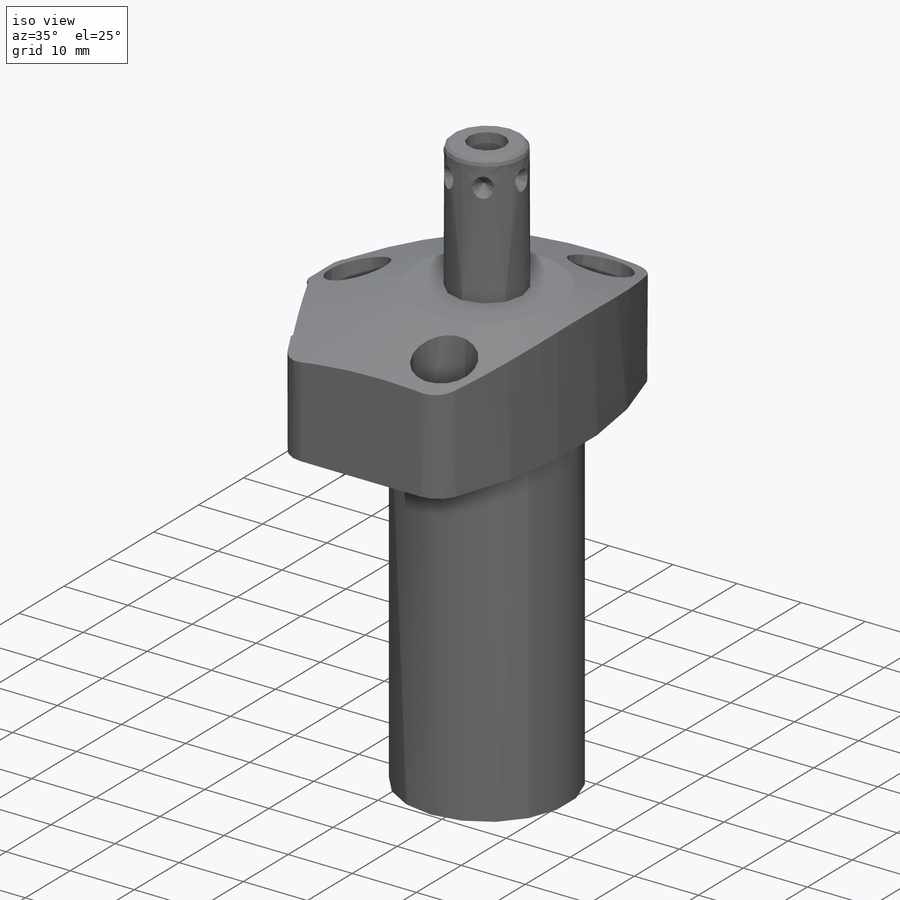
[diagram: iso view]
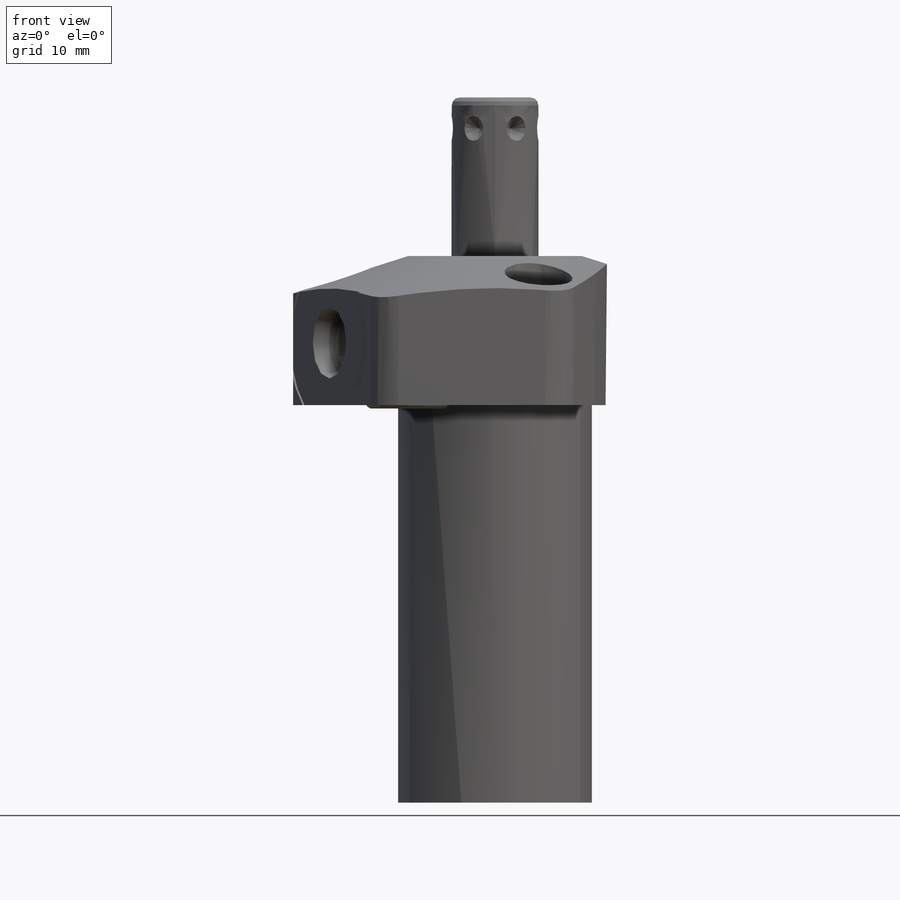
[diagram: front view]
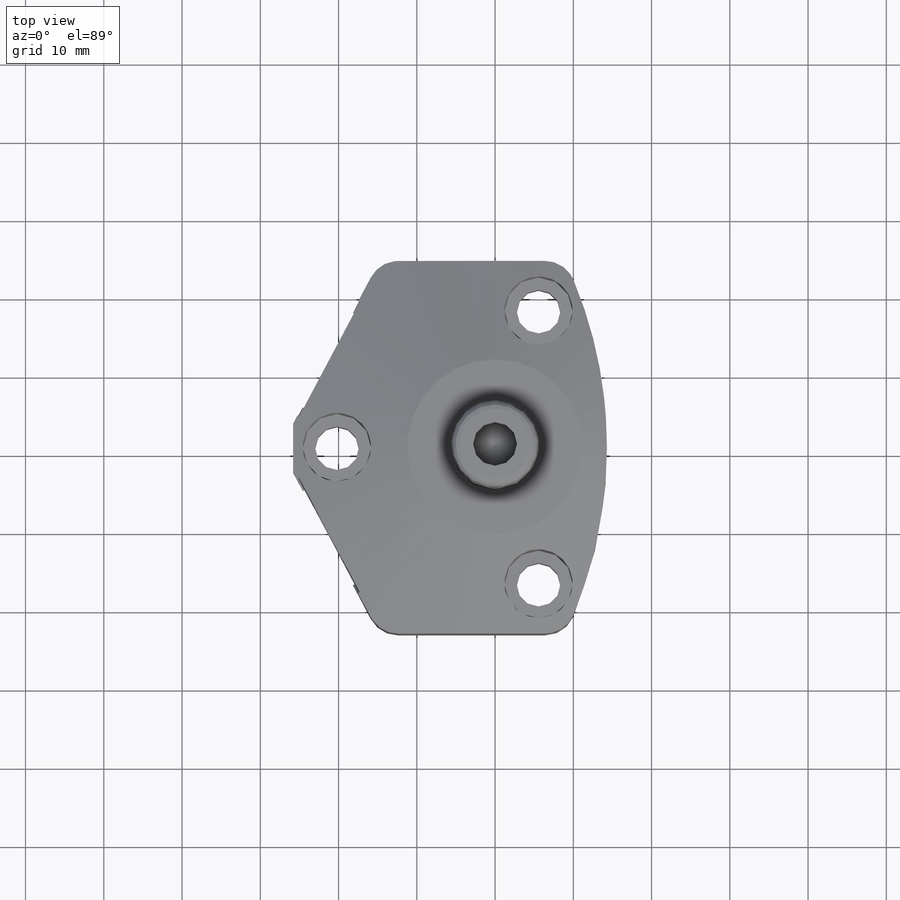
[diagram: top view]
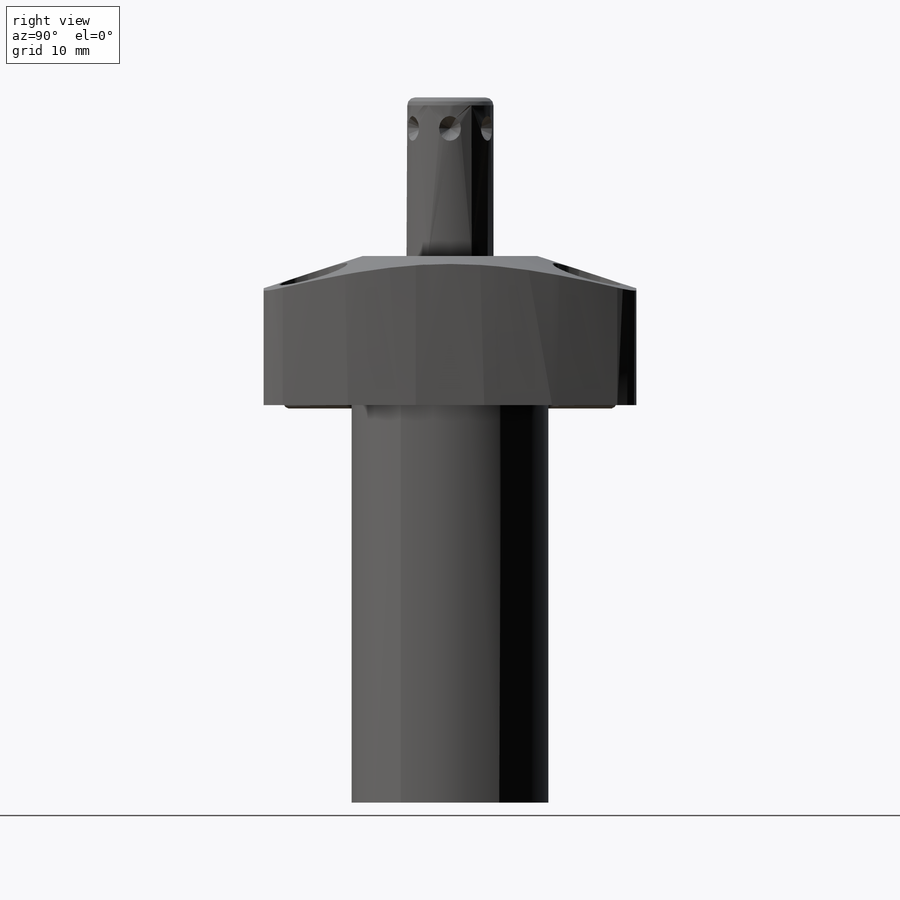
[diagram: right view]
SOLIDWORKS PART (.sldprt)
format: sldprt  version: not decoded by parser v0  size: 455,168 bytes
history: native  units: mm
features: sketch x18, plane x14, cut_revolve x7, cut_extrude x6, revolve x3, material x1, fillet x1, pattern_circular x1, hole x1, mirror x1 (+13 scaffold rows collapsed)
feature tree (66):
  scaffold x13  (default folders/planes/origin — collapsed)
  material  "Alloy Steel"
  plane  "Plane1"
  sketch  "Sketch1"  dims[D1=69.85mm D2=19.05mm D3=25.146mm D4=57.15mm]
  revolve  "Revolve1"  Angle=360deg
  plane  "Plane2"
  sketch  "Sketch2"  dims[D1=47.625mm D2=0.0mm]
  cut_extrude  "Cut-Extrude1"  [1 undecoded]
  plane  "Plane3"
  sketch  "Sketch3"  dims[c1.D1=~35.17504mm c2.D1=28.0deg c2.D2=24.2062mm]
  cut_extrude  "Cut-Extrude2"  Depth=0mm
  plane  "Plane4"
  sketch  "S2D0002"  dims[D1=55.5752mm D2=15.4686mm D3=41.275mm D4=~106.758143mm]
  cut_extrude  "Cut-Extrude3"  Depth=26.035mm
  fillet  "Fillet1"  Radius=3.9624mm
  plane  "Plane5"
  sketch  "Sketch5"  dims[c1.D1=22.352mm c1.D2=~38.255815mm c2.D2=18.0deg c2.D3=44.45mm]
  cut_revolve  "Cut-Revolve1"  Angle=360deg
  plane  "Plane6"
  sketch  "Sketch6"  dims[D1=12.192mm]
  cut_revolve  "Cut-Revolve2"  Angle=360deg
  plane  "Plane7"
  sketch  "Sketch7"  dims[D1=12.192mm]
  cut_revolve  "Cut-Revolve3"  Angle=360deg
  plane  "Plane8"
  sketch  "Sketch17"  dims[D1=20.955mm]
  cut_extrude  "Cut-Extrude4"  Depth=0.254mm
  sketch  "Sketch18"  dims[D1=20.955mm]
  cut_extrude  "Cut-Extrude5"  Depth=0.254mm
  sketch  "Sketch8"  dims[D1=11.684mm]
  cut_revolve  "Cut-Revolve4"  Angle=360deg
  plane  "Plane9"
  sketch  "Sketch9"  dims[D1=11.684mm]
  cut_revolve  "Cut-Revolve5"  Angle=360deg
  plane  "Plane10"
  sketch  "Sketch10"  dims[D3=1.016mm D1=11.1125mm D2=39.3192mm]
  revolve  "Revolve2"  Angle=360deg
  sketch  "Sketch19"  dims[D1=11.1252mm]
  cut_extrude  "Cut-Extrude6"  Depth=2.667mm
  plane  "Plane11"
  sketch  "S2D0001"  dims[c1.D1=5.6134mm c1.D2=10.16mm c1.D3=2.8067mm c2.D3=59.0deg]
  cut_revolve  "Cut-Revolve6"  Angle=360deg
  plane  "Plane14"
  sketch  "Sketch14"  dims[D5=0.508mm D9=0.889mm D1=2.54mm D2=7.9502mm D3=3.175mm D4=0.127mm D6=5.334mm D7=0.3048mm D8=0.3048mm D10=9.144mm D11=10.922mm D12=6.5024mm]
  revolve  "Revolve3"  Angle=360deg
  plane  "Plane15"
  sketch  "Sketch15"  dims[c1.D1=3.9624mm c1.D2=3.175mm c1.D3=1.5875mm c2.D3=45.0deg]
  plane  "Plane16"
  cut_revolve  "Cut-Revolve7"  Angle=360deg
  pattern_circular  "CirPattern1"  Count=6 Angle=360deg
  hole  "Hole1"  Diameter=5.5626mm Depth=19.05mm
  sketch  "Sketch21"  dims[D1=5.5626mm D2=17.4498mm D3=20.193mm]
  sketch  "Sketch20"  dims[Diameter=5.5626mm Depth=19.05mm C-Bore Diameter=8.7122mm C-Bore Depth=11.0998mm]
  mirror  "Mirror1"
decode coverage: 36 of 38 modeling features carry decoded parameters
note: ~ marks probable driven/reference dimensions
note: 1 parameter value undecoded
note: suppression state not decoded; provenance and decode notes live in map.json
